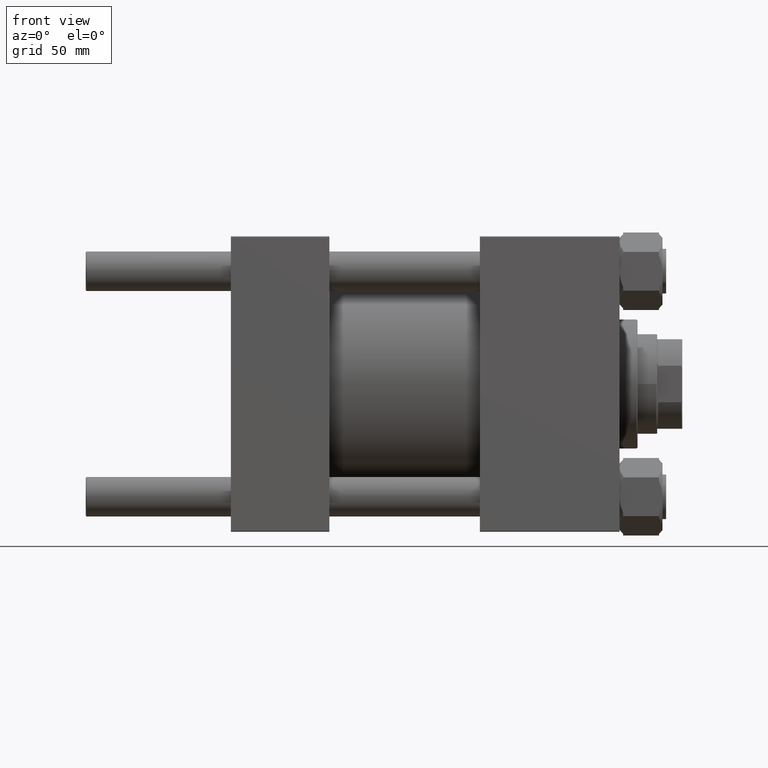
[diagram: clean part render]
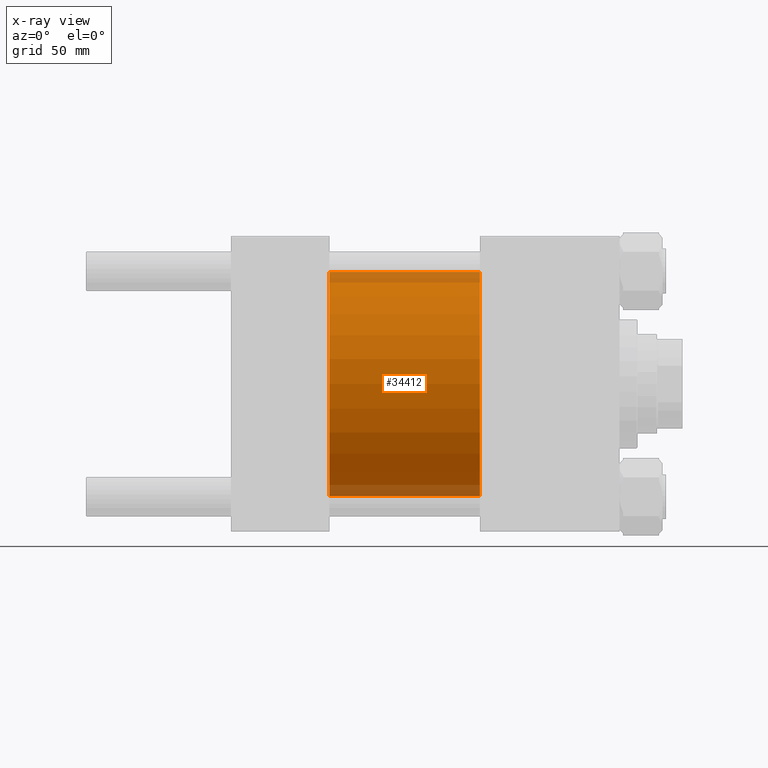
[diagram: x-ray — body ghosted, one internal face saturated and labeled with its STEP entity id]
A machine part, front view, then the same camera in x-ray: the body is ghosted and one INTERNAL B-rep face — a face not visible from any outside direction — is saturated and labeled: STEP entity #34412.
In plain terms, the highlighted cylindrical surface (partial cylindrical patch) has radius 62.5 mm, axis along (-1, -0, -0).
Its self-contained STEP definition (entity closure, byte-faithful):
#3795 = DIRECTION ( 'NONE',  ( 1.000000000000000000, 0.000000000000000000, 0.000000000000000000 ) ) ;
#5648 = LINE ( 'NONE', #25204, #13390 ) ;
#8238 = VERTEX_POINT ( 'NONE', #22997 ) ;
#8815 = EDGE_CURVE ( 'NONE', #8238, #31743, #5648, .T. ) ;
#12283 = EDGE_LOOP ( 'NONE', ( #31178, #20921, #42802, #46907 ) ) ;
#12380 = EDGE_CURVE ( 'NONE', #39740, #31743, #23951, .T. ) ;
#13390 = VECTOR ( 'NONE', #21146, 1000.000000000000000 ) ;
#13579 = DIRECTION ( 'NONE',  ( 0.000000000000000000, 0.000000000000000000, -1.000000000000000000 ) ) ;
#14986 = DIRECTION ( 'NONE',  ( -1.000000000000000000, -0.000000000000000000, -0.000000000000000000 ) ) ;
#15073 = AXIS2_PLACEMENT_3D ( 'NONE', #30487, #14986, #30742 ) ;
#19299 = DIRECTION ( 'NONE',  ( 0.000000000000000000, 0.000000000000000000, -1.000000000000000000 ) ) ;
#20921 = ORIENTED_EDGE ( 'NONE', *, *, #8815, .T. ) ;
#21146 = DIRECTION ( 'NONE',  ( -1.000000000000000000, -0.000000000000000000, -0.000000000000000000 ) ) ;
#22606 = CARTESIAN_POINT ( 'NONE',  ( 55.00000000000000000, 0.000000000000000000, 0.000000000000000000 ) ) ;
#22997 = CARTESIAN_POINT ( 'NONE',  ( 139.0000000000000000, 7.654042494670956226E-15, -62.50000000000000000 ) ) ;
#23275 = LINE ( 'NONE', #38540, #37894 ) ;
#23951 = CIRCLE ( 'NONE', #46689, 62.50000000000000000 ) ;
#24003 = CARTESIAN_POINT ( 'NONE',  ( 55.00000000000000000, 7.654042494670956226E-15, -62.50000000000000000 ) ) ;
#24570 = AXIS2_PLACEMENT_3D ( 'NONE', #32907, #29335, #13579 ) ;
#25204 = CARTESIAN_POINT ( 'NONE',  ( 139.0000000000000000, 7.654042494670956226E-15, -62.50000000000000000 ) ) ;
#25673 = CYLINDRICAL_SURFACE ( 'NONE', #15073, 62.50000000000000000 ) ;
#27181 = EDGE_CURVE ( 'NONE', #37019, #8238, #44091, .T. ) ;
#27729 = CARTESIAN_POINT ( 'NONE',  ( 55.00000000000000000, 0.000000000000000000, 62.50000000000000000 ) ) ;
#29335 = DIRECTION ( 'NONE',  ( 1.000000000000000000, 0.000000000000000000, 0.000000000000000000 ) ) ;
#30487 = CARTESIAN_POINT ( 'NONE',  ( 139.0000000000000000, 0.000000000000000000, 0.000000000000000000 ) ) ;
#30742 = DIRECTION ( 'NONE',  ( 0.000000000000000000, 0.000000000000000000, 1.000000000000000000 ) ) ;
#31178 = ORIENTED_EDGE ( 'NONE', *, *, #27181, .T. ) ;
#31743 = VERTEX_POINT ( 'NONE', #24003 ) ;
#32907 = CARTESIAN_POINT ( 'NONE',  ( 139.0000000000000000, 0.000000000000000000, 0.000000000000000000 ) ) ;
#34412 = ADVANCED_FACE ( 'NONE', ( #49318 ), #25673, .F. ) ;
#37019 = VERTEX_POINT ( 'NONE', #37576 ) ;
#37576 = CARTESIAN_POINT ( 'NONE',  ( 139.0000000000000000, 0.000000000000000000, 62.50000000000000000 ) ) ;
#37894 = VECTOR ( 'NONE', #49992, 1000.000000000000000 ) ;
#38388 = EDGE_CURVE ( 'NONE', #37019, #39740, #23275, .T. ) ;
#38540 = CARTESIAN_POINT ( 'NONE',  ( 139.0000000000000000, 0.000000000000000000, 62.50000000000000000 ) ) ;
#39740 = VERTEX_POINT ( 'NONE', #27729 ) ;
#42802 = ORIENTED_EDGE ( 'NONE', *, *, #12380, .F. ) ;
#44091 = CIRCLE ( 'NONE', #24570, 62.50000000000000000 ) ;
#46689 = AXIS2_PLACEMENT_3D ( 'NONE', #22606, #3795, #19299 ) ;
#46907 = ORIENTED_EDGE ( 'NONE', *, *, #38388, .F. ) ;
#49318 = FACE_OUTER_BOUND ( 'NONE', #12283, .T. ) ;
#49992 = DIRECTION ( 'NONE',  ( -1.000000000000000000, -0.000000000000000000, -0.000000000000000000 ) ) ;